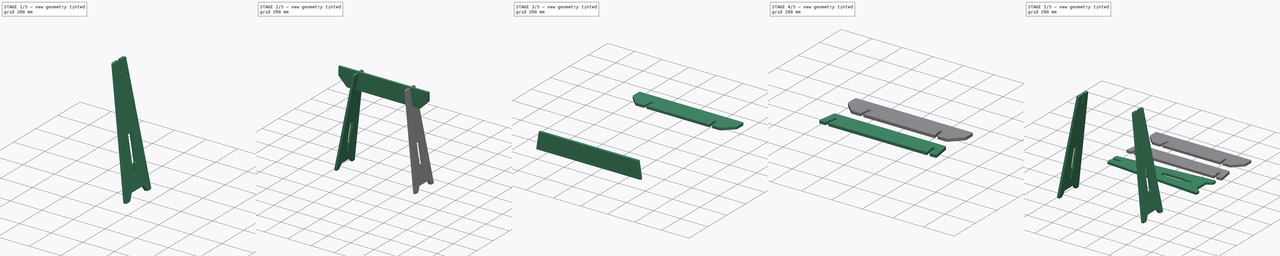
[diagram: build sequence overview — one tinted view per stage of 5, left to right]
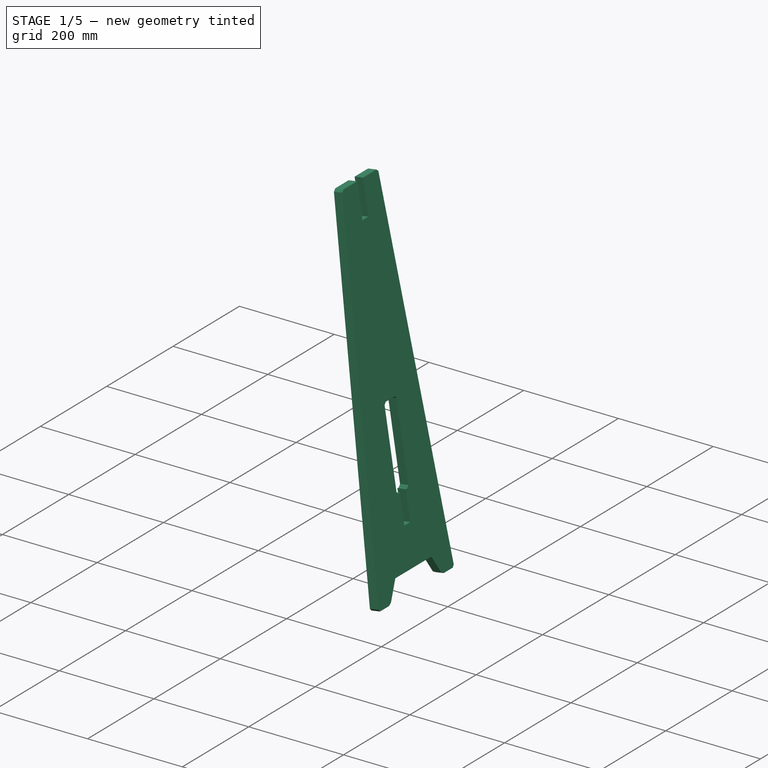
[diagram: stage 1 of 5 — iso view after this stage's code; geometry added in this stage tinted green]
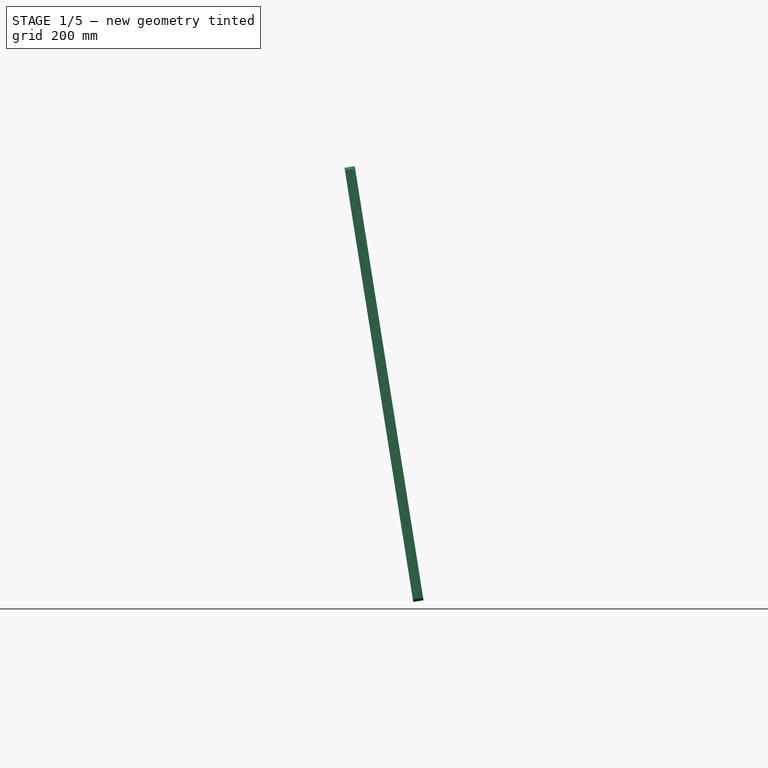
[diagram: stage 1 of 5 — front view after this stage's code; geometry added in this stage tinted green]
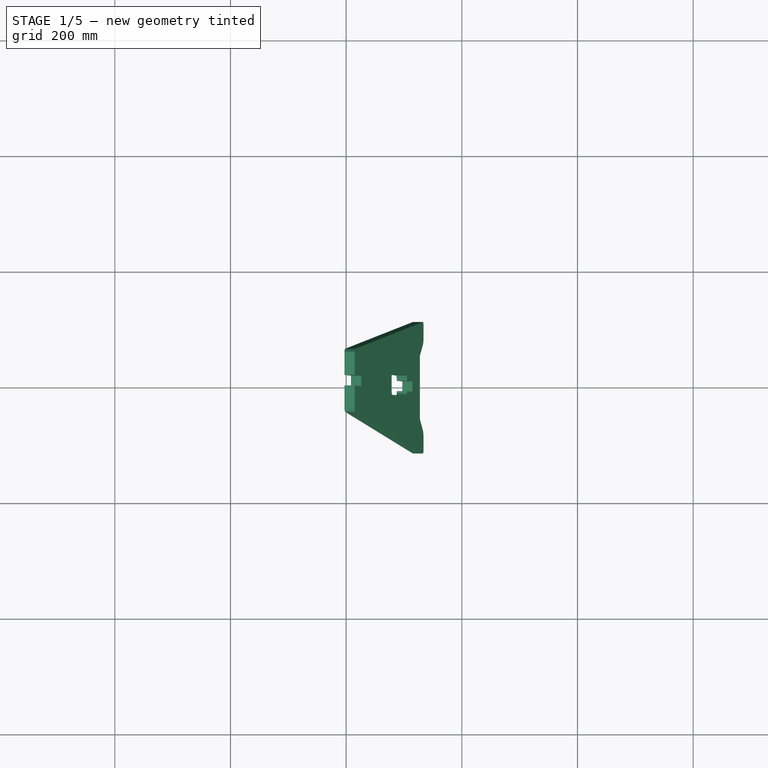
[diagram: stage 1 of 5 — top view after this stage's code; geometry added in this stage tinted green]
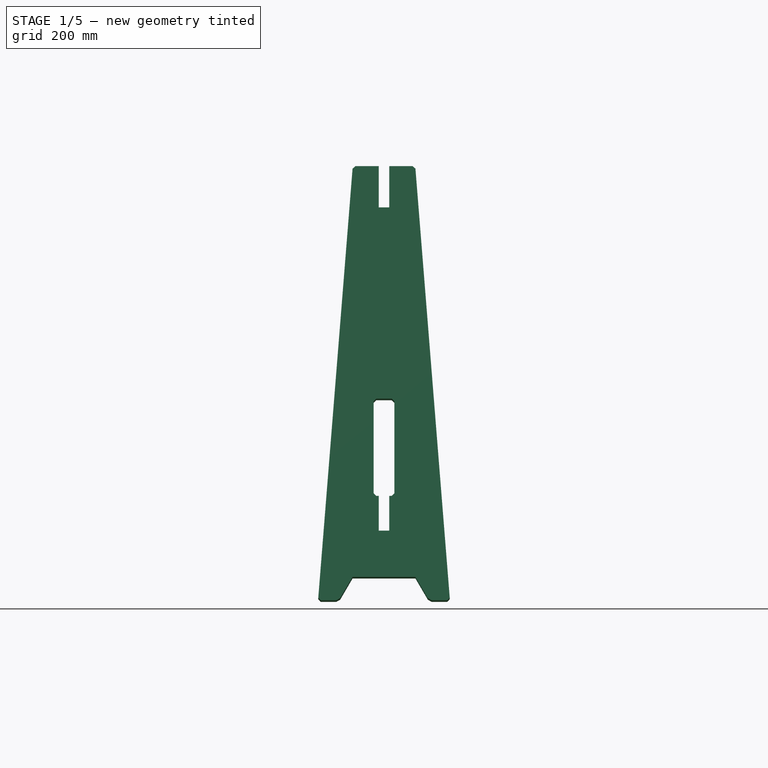
[diagram: stage 1 of 5 — right view after this stage's code; geometry added in this stage tinted green]
FCSTD DOCUMENT  (FreeCAD 0.18R4 (GitTag))
Label: parametric-sawhorse
License: CreativeCommons Attribution-ShareAlike
LicenseURL: http://creativecommons.org/licenses/by-sa/4.0/
objects: Part::FeaturePython×7, PartDesign::Chamfer×4, Sketcher::SketchObject×3, PartDesign::Pad×3, PartDesign::Body×3, Part::Cut×2, Spreadsheet::Sheet×1, Part::Mirroring×1, Part::Compound×1
note: 27 computed .brp shape members not serialized (recipe doc carries the construction recipe); baked Part::Feature solids carry a one-line shape summary decoded from their .brp

FEATURE [Sketcher::SketchObject] Sketch002
  MapMode = 5
  Placement = pos=(0,0,0) rot=(0.57735,0.57735,0.57735;2.0944rad)
  Support = -> [YZ_Plane002]
  expr: Constraints[39] = Spreadsheet.material_thickness
  expr: Constraints[64] = Spreadsheet.ground_clearance - Spreadsheet.material_thickness * 0.5
  expr: Constraints[32] = Spreadsheet.material_thickness * 3
  expr: Constraints[60] = Spreadsheet.top_bar_heigth * 0.5
  expr: Constraints[55] = Spreadsheet.heigth - Spreadsheet.top_bar_heigth * 0.5
  expr: Constraints[51] = Spreadsheet.material_thickness * 0.5
  expr: Constraints[31] = Spreadsheet.leg_width / 2
  expr: Constraints[30] = Spreadsheet.leg_width
  expr: Constraints[47] = Spreadsheet.leg_angle
  expr: Constraints[43] = Spreadsheet.bottom_bar_heigth * 1.4
  expr: Constraints[67] = Spreadsheet.leg_width * 0.5 - Spreadsheet.material_thickness * 2
  expr: Constraints[46] = Spreadsheet.ground_clearance + Spreadsheet.bottom_bar_heigth
  expr: Constraints[42] = Spreadsheet.bottom_bar_heigth * 0.5
  expr: Constraints[33] = Spreadsheet.material_thickness * 0.5
  expr: Constraints[45] = Spreadsheet.leg_width
  expr: Constraints[40] = Spreadsheet.material_thickness * 0.5
  sketch-geometry (24):
    g0: LineSegment StartX=54 StartY=760 StartZ=0 EndX=114 EndY=0 EndZ=0
    g1: LineSegment StartX=114 StartY=0 StartZ=0 EndX=78 EndY=0 EndZ=0
    g2: LineSegment StartX=78 StartY=0 StartZ=0 EndX=54.3286 EndY=41 EndZ=0
    g3: LineSegment StartX=-54.3286 StartY=41 StartZ=0 EndX=-78 EndY=0 EndZ=0
    g4: LineSegment StartX=-114 StartY=0 StartZ=0 EndX=-54 EndY=760 EndZ=0
    g5: LineSegment StartX=-54.3286 StartY=41 StartZ=0 EndX=54.3286 EndY=41 EndZ=0
    g6: LineSegment StartX=-54 StartY=760 StartZ=0 EndX=-9 EndY=760 EndZ=0
    g7: LineSegment StartX=-9 StartY=760 StartZ=0 EndX=-9 EndY=687.8 EndZ=0
    g8: LineSegment StartX=-9 StartY=687.8 StartZ=0 EndX=9 EndY=687.8 EndZ=0
    g9: LineSegment StartX=9 StartY=687.8 StartZ=0 EndX=9 EndY=760 EndZ=0
    g10: LineSegment StartX=9 StartY=760 StartZ=0 EndX=54 EndY=760 EndZ=0
    g11: LineSegment StartX=-18 StartY=182.739 StartZ=0 EndX=-9 EndY=182.739 EndZ=0
    g12: LineSegment StartX=-9 StartY=182.739 StartZ=0 EndX=-9 EndY=121.939 EndZ=0
    g13: LineSegment StartX=-9 StartY=121.939 StartZ=0 EndX=9 EndY=121.939 EndZ=0
    g14: LineSegment StartX=9 StartY=121.939 StartZ=0 EndX=9 EndY=182.739 EndZ=0
    g15: LineSegment StartX=9 StartY=182.739 StartZ=0 EndX=18 EndY=182.739 EndZ=0
    g16: LineSegment StartX=18 StartY=182.739 StartZ=0 EndX=18 EndY=352.979 EndZ=0
    g17: LineSegment StartX=18 StartY=352.979 StartZ=0 EndX=-18 EndY=352.979 EndZ=0
    g18: LineSegment StartX=-18 StartY=352.979 StartZ=0 EndX=-18 EndY=182.739 EndZ=0
    g19: LineSegment [constr] StartX=-255.179 StartY=171.6 StartZ=0 EndX=-228 EndY=0 EndZ=0
    g20: LineSegment [constr] StartX=-228 StartY=173.739 StartZ=0 EndX=-228 EndY=0 EndZ=0
    g21: LineSegment [constr] StartX=-328 StartY=0 StartZ=0 EndX=-220.404 EndY=-679.332 EndZ=0
    g22: LineSegment [constr] StartX=-328 StartY=0 StartZ=0 EndX=-328 EndY=687.8 EndZ=0
    g23: LineSegment StartX=-114 StartY=0 StartZ=0 EndX=-78 EndY=0 EndZ=0
  constraints (68):
    c: PointOnObject(g0,g-1)
    c: Coincident(g0,g1)
    c: PointOnObject(g1,g-1)
    c: Coincident(g1,g2)
    c: PointOnObject(g4,g-1)
    c: Coincident(g5,g3)
    c: Coincident(g5,g2)
    c: Coincident(g4,g6)
    c: Horizontal(g6)
    c: Coincident(g6,g7)
    c: Vertical(g7)
    c: Coincident(g7,g8)
    c: Horizontal(g8)
    c: Coincident(g8,g9)
    c: Vertical(g9)
    c: Coincident(g9,g10)
    c: Coincident(g10,g0)
    c: Horizontal(g11)
    c: Coincident(g11,g12)
    c: Vertical(g12)
    c: Coincident(g12,g13)
    c: Horizontal(g13)
    c: Coincident(g13,g14)
    c: Vertical(g14)
    c: Coincident(g14,g15)
    c: Horizontal(g15)
    c: Coincident(g15,g16)
    c: Coincident(g16,g17)
    c: Coincident(g17,g18)
    c: Coincident(g18,g11)
    c: DistanceX(g4,g0) = 228
    c: DistanceX(g4,g-1) = 114
    c: DistanceX(g4,g-1) = 54
    c: DistanceX(g6,g-1) = 9
    c: Symmetric(g0,g4,g-2)
    c: Symmetric(g9,g6,g-2)
    c: Symmetric(g16,g17,g-2)
    c: Vertical(g18)
    c: Vertical(g16)
    c: DistanceX(g17,g-1) = 18
    c: DistanceX(g11,g-1) = 9
    c: Symmetric(g14,g11,g-2)
    c: Distance(g12) = 60.8
    c: Distance(g16) = 170.24
    c: DistanceY(g-1,g19) = 0
    c: DistanceX(g19,g-1) = 228
    c: DistanceY(g19,g19) = 171.6
    c: Angle(g-2,g19) = 0.15708
    c: Vertical(g20)
    c: Equal(g20,g19)
    c: Coincident(g20,g19)
    c: DistanceY(g20,g11) = 9
    c: DistanceY(g19,g21) = 0
    c: DistanceX(g21,g19) = 100
    c: Parallel(g21,g19)
    c: Distance(g21) = 687.8
    c: Vertical(g22)
    c: Equal(g22,g21)
    c: Coincident(g22,g21)
    c: DistanceY(g7,g22) = 0
    c: Distance(g7) = 72.2
    c: Angle(g3,g-2) = 0.523599
    c: Symmetric(g2,g3,g-2)
    c: Symmetric(g1,g3,g-2)
    c: DistanceY(g3,g3) = 41
    c: Coincident(g23,g4)
    c: Coincident(g23,g3)
    c: DistanceX(g3,g-1) = 78
FEATURE [PartDesign::Pad] Pad002
  Length = 18
  Length2 = 100
  Placement = pos=(0,0,0) rot=(0.57735,0.57735,0.57735;2.0944rad)
  Profile = -> Sketch002
  Reversed = true
  Type = 0
  expr: Length = Spreadsheet.material_thickness
FEATURE [PartDesign::Body] Body001  label="Bottom bar body"
  Group = -> [Sketch001,Pad001,Chamfer002]
  Origin = -> Origin001
  Tip = -> Chamfer002
FEATURE [PartDesign::Chamfer] Chamfer003
  Base = -> Pad002 [Edge17,Edge2,Edge1,Edge20,Edge23,Edge32,Edge53,Edge56,Edge50,Edge37]
  BaseFeature = -> Pad002
  Placement = pos=(0,0,0) rot=(0.57735,0.57735,0.57735;2.0944rad)
  Size = 4.5
  expr: Size = Spreadsheet.chamfer_size
FEATURE [PartDesign::Body] Body002  label="Leg body"
  Group = -> [Sketch002,Pad002,Chamfer003]
  Origin = -> Origin002
  Tip = -> Chamfer003
FEATURE [Part::FeaturePython] Array  # Draft array (typed FeaturePython)
  Angle = 360
  ArrayType = 0
  Axis = (0,0,1)
  Base = -> Chamfer003
  Center = (0,0,0)
  Fuse = false
  IntervalAxis = (0,0,0)
  IntervalX = (1,0,0)
  IntervalY = (0,1,0)
  IntervalZ = (0,0,1)
  NumberPolar = 1
  NumberX = 1
  NumberY = 1
  NumberZ = 1
  Placement = pos=(54,0,0) rot=(0,1,0;0.15708rad)
  expr: Placement.Base.x = Spreadsheet.material_thickness * 3
  expr: Placement.Rotation.Angle = Spreadsheet.leg_angle
FEATURE [Part::Mirroring] Part__Mirroring  label="Array (Mirror #1)"
  Base = (385,0,0)
  Normal = (1,0,0)
  Source = -> Array
  expr: Base.x = Spreadsheet.width * 0.5
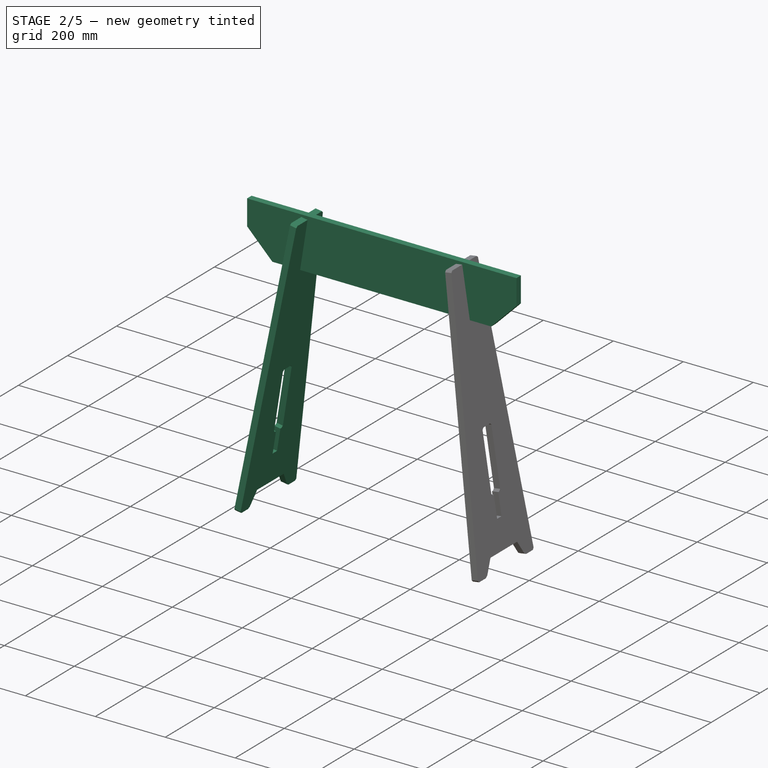
[diagram: stage 2 of 5 — iso view after this stage's code; geometry added in this stage tinted green]
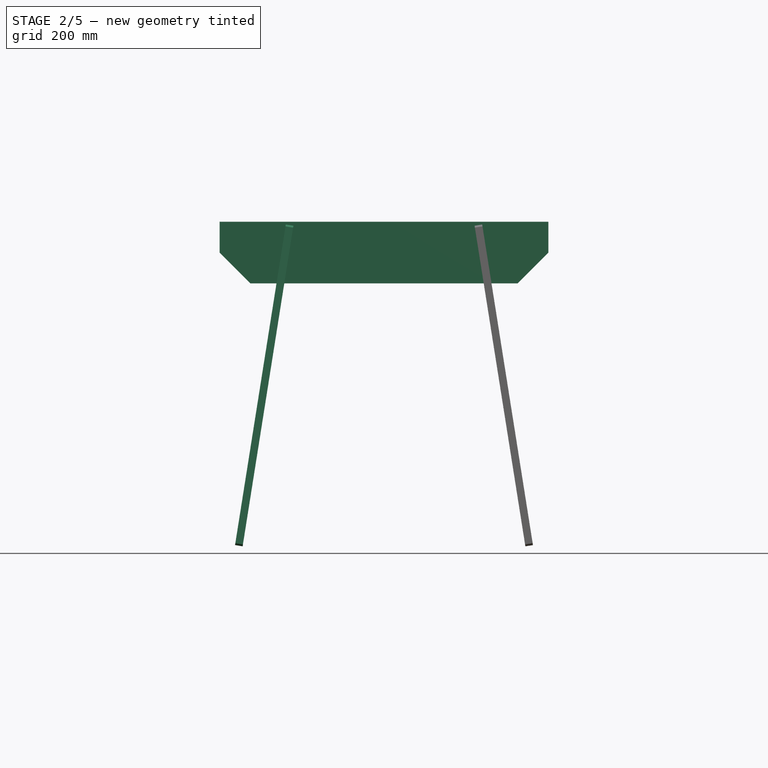
[diagram: stage 2 of 5 — front view after this stage's code; geometry added in this stage tinted green]
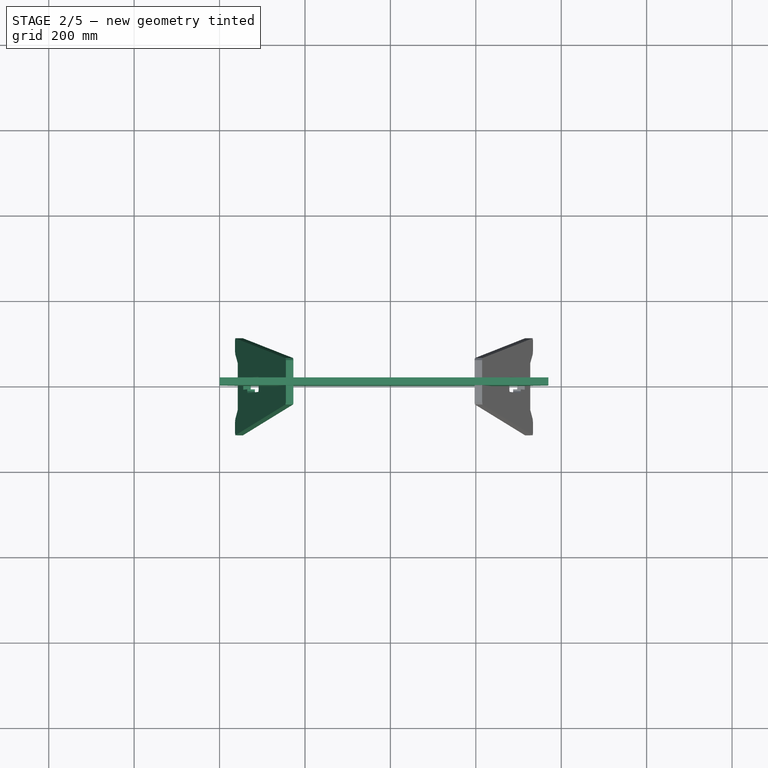
[diagram: stage 2 of 5 — top view after this stage's code; geometry added in this stage tinted green]
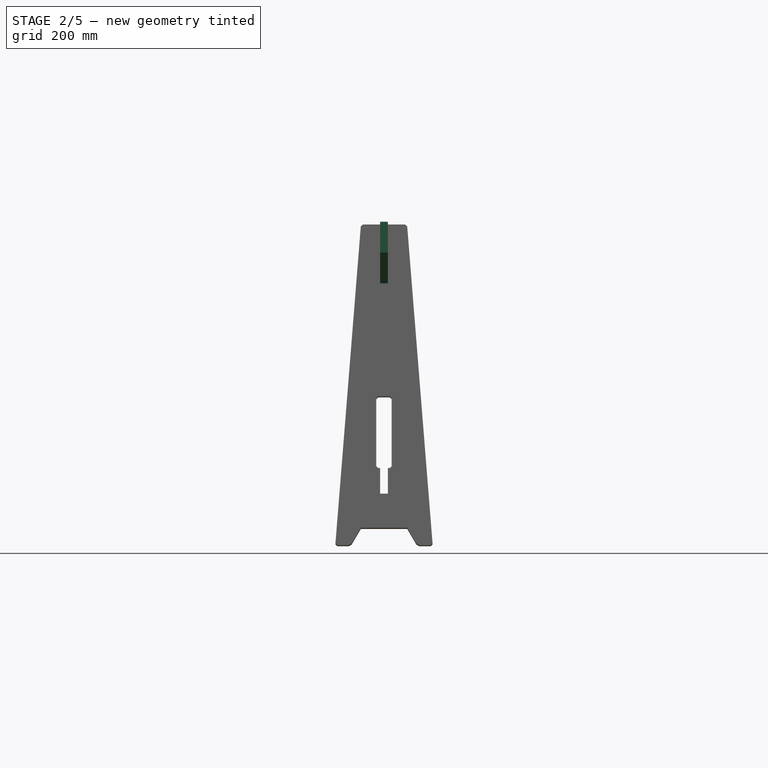
[diagram: stage 2 of 5 — right view after this stage's code; geometry added in this stage tinted green]
FEATURE [Spreadsheet::Sheet] Spreadsheet
  cells = A2=Main settings:; A3=Horse heigth; B3(heigth)=760; A4=Horse width; B4(width)=770; A5=Material thickness; B5(material_thickness)=18; A7=Advanced settings:; A8=Leg angle; B8(leg_angle)=9; A9=Leg width factor; B9=0.3; A10=Top bar heigth factor; B10=0.19; A11=Bottom bar heigth factor; B11=0.16; A12=Chamfer factor; B12=0.25; A13=Ground clearance; B13(ground_clearance)=50; A17=Computed values (not to be changed):; A18=Leg width; B18(leg_width)==heigth * B9; A19=Top bar heigth; B19(top_bar_heigth)==heigth * B10; A20=Bottom bar heigth; B20(bottom_bar_heigth)==heigth * B11; A21=Chamfer size; B21(chamfer_size)==material_thickness * B12
FEATURE [Sketcher::SketchObject] Sketch
  MapMode = 5
  Placement = pos=(0,0,0) rot=(1,0,0;1.5708rad)
  Support = -> [XZ_Plane]
  expr: Constraints[11] = Spreadsheet.heigth
  expr: Constraints[9] = Spreadsheet.top_bar_heigth
  expr: Constraints[8] = Spreadsheet.width
  sketch-geometry (4):
    g0: LineSegment StartX=0 StartY=760 StartZ=0 EndX=770 EndY=760 EndZ=0
    g1: LineSegment StartX=770 StartY=760 StartZ=0 EndX=770 EndY=615.6 EndZ=0
    g2: LineSegment StartX=770 StartY=615.6 StartZ=0 EndX=0 EndY=615.6 EndZ=0
    g3: LineSegment StartX=0 StartY=615.6 StartZ=0 EndX=0 EndY=760 EndZ=0
  constraints (12):
    c: Coincident(g0,g1)
    c: Coincident(g1,g2)
    c: Coincident(g2,g3)
    c: Coincident(g3,g0)
    c: Horizontal(g0)
    c: Horizontal(g2)
    c: Vertical(g1)
    c: Vertical(g3)
    c: DistanceX(g2,g2) = 770
    c: DistanceY(g1,g1) = 144.4
    c: DistanceX(g0,g-1) = 0
    c: DistanceY(g-1,g0) = 760
FEATURE [PartDesign::Pad] Pad
  Length = 18
  Length2 = 100
  Midplane = true
  Placement = pos=(0,0,0) rot=(1,0,0;1.5708rad)
  Profile = -> Sketch
  Type = 0
  expr: Length = Spreadsheet.material_thickness
FEATURE [PartDesign::Chamfer] Chamfer
  Base = -> Pad [Edge5,Edge8]
  BaseFeature = -> Pad
  Placement = pos=(0,0,0) rot=(1,0,0;1.5708rad)
  Size = 72.2
  expr: Size = Spreadsheet.top_bar_heigth * 0.5
FEATURE [Part::Compound] Compound  label="Legs for boolean"
  Links = -> [Array,Part__Mirroring]
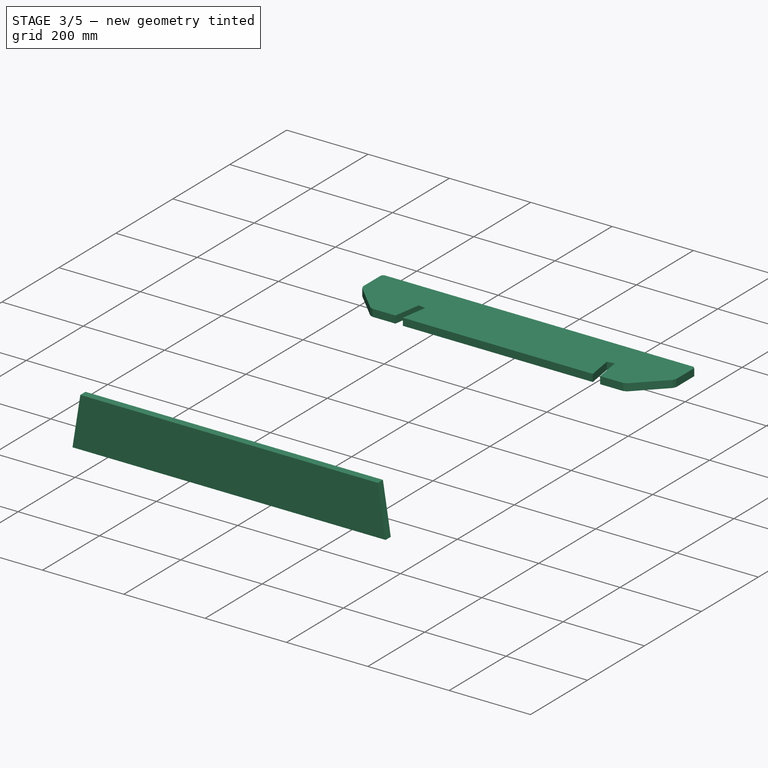
[diagram: stage 3 of 5 — iso view after this stage's code; geometry added in this stage tinted green]
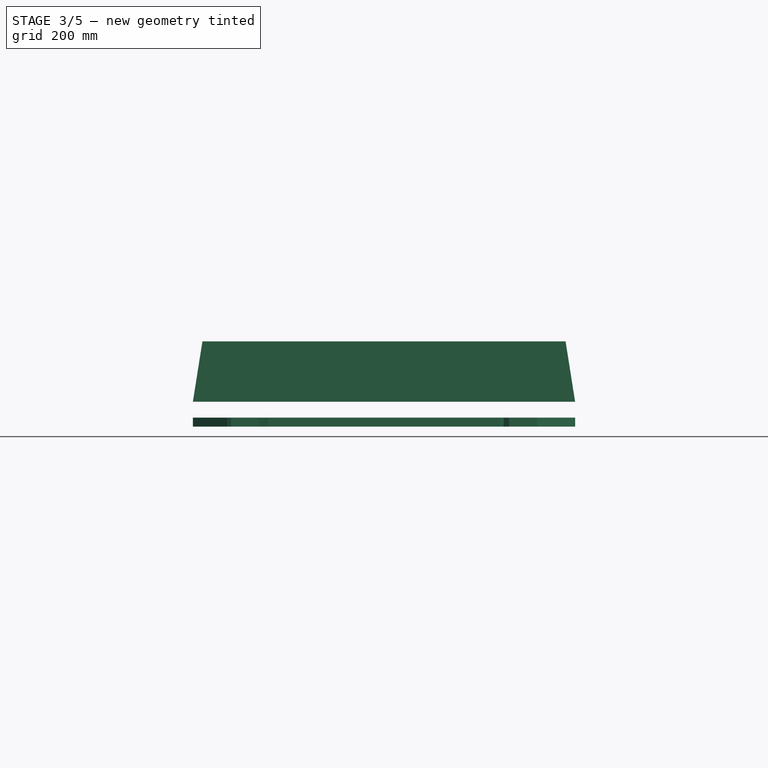
[diagram: stage 3 of 5 — front view after this stage's code; geometry added in this stage tinted green]
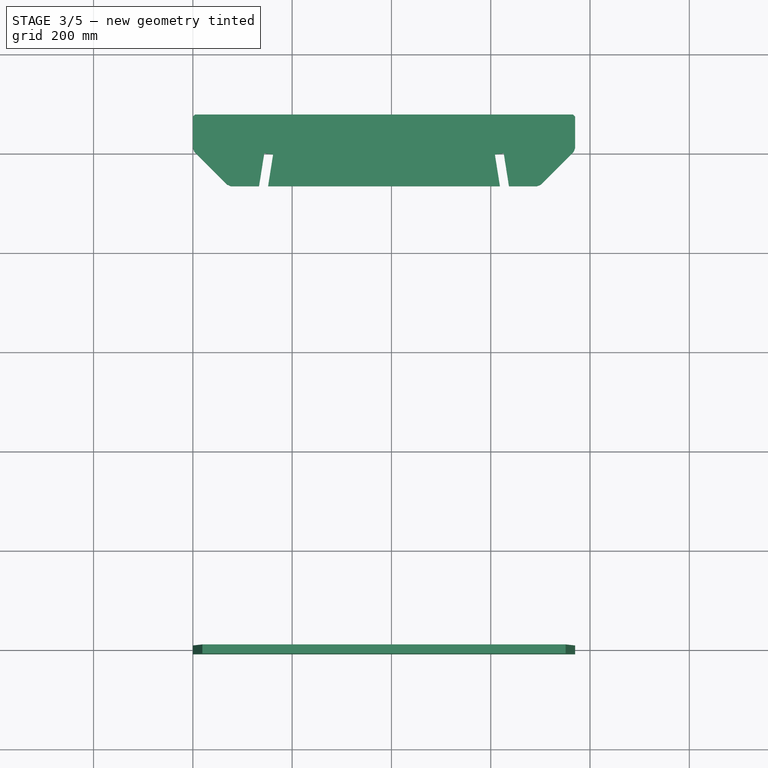
[diagram: stage 3 of 5 — top view after this stage's code; geometry added in this stage tinted green]
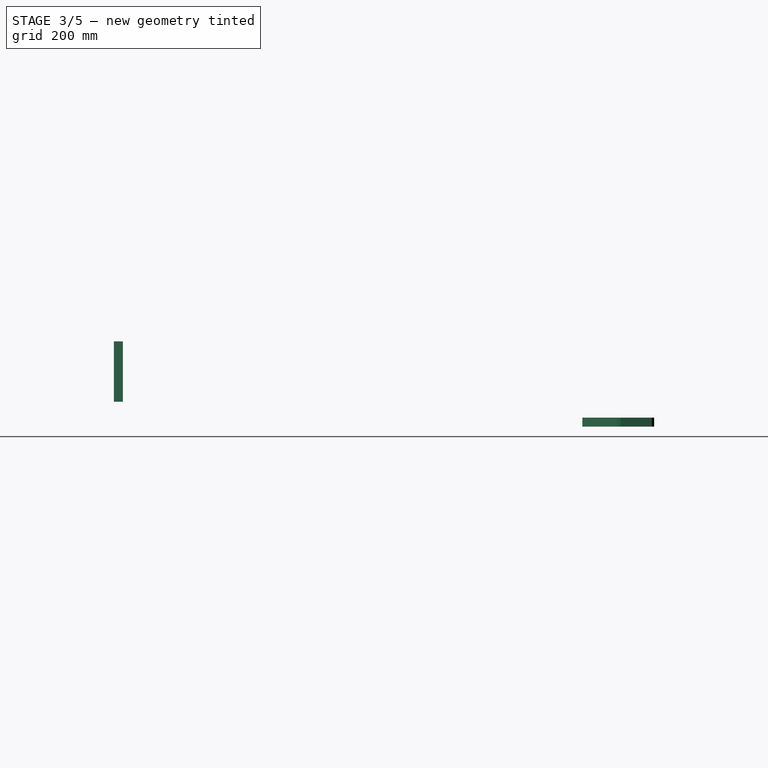
[diagram: stage 3 of 5 — right view after this stage's code; geometry added in this stage tinted green]
FEATURE [Sketcher::SketchObject] Sketch001
  MapMode = 5
  Placement = pos=(0,0,0) rot=(1,0,0;1.5708rad)
  Support = -> [XZ_Plane001]
  expr: Constraints[11] = Spreadsheet.ground_clearance
  expr: Constraints[9] = Spreadsheet.bottom_bar_heigth
  expr: Constraints[8] = Spreadsheet.width
  expr: Constraints[7] = Spreadsheet.leg_angle
  expr: Constraints[6] = Spreadsheet.leg_angle
  sketch-geometry (4):
    g0: LineSegment StartX=0 StartY=50 StartZ=0 EndX=770 EndY=50 EndZ=0
    g1: LineSegment StartX=770 StartY=50 StartZ=0 EndX=750.74 EndY=171.6 EndZ=0
    g2: LineSegment StartX=750.74 StartY=171.6 StartZ=0 EndX=19.2595 EndY=171.6 EndZ=0
    g3: LineSegment StartX=19.2595 StartY=171.6 StartZ=0 EndX=0 EndY=50 EndZ=0
  constraints (12):
    c: Coincident(g0,g1)
    c: Coincident(g1,g2)
    c: Coincident(g2,g3)
    c: Coincident(g3,g0)
    c: Horizontal(g0)
    c: Horizontal(g2)
    c: Angle(g3,g-2) = 0.15708
    c: Angle(g-2,g1) = 0.15708
    c: DistanceX(g0,g0) = 770
    c: DistanceY(g0,g2) = 121.6
    c: DistanceX(g0,g-1) = 0
    c: DistanceY(g-1,g0) = 50
FEATURE [PartDesign::Pad] Pad001
  Length = 18
  Length2 = 100
  Midplane = true
  Placement = pos=(0,0,0) rot=(1,0,0;1.5708rad)
  Profile = -> Sketch001
  Type = 0
  expr: Length = Spreadsheet.material_thickness
FEATURE [PartDesign::Chamfer] Chamfer001
  Base = -> Chamfer [Edge18,Edge12,Edge17,Edge10,Edge2,Edge3]
  BaseFeature = -> Chamfer
  Placement = pos=(0,0,0) rot=(1,0,0;1.5708rad)
  Size = 4.5
  expr: Size = Spreadsheet.chamfer_size
FEATURE [Part::Cut] Cut001  label="Top bar cut"
  Base = -> Chamfer001
  Refine = true
  Tool = -> Compound
FEATURE [Part::FeaturePython] Clone002  label="Nested top bar"  # Draft clone (typed FeaturePython)
  AttacherType = Attacher::AttachEngine3D
  Fuse = false
  Objects = -> [Cut001]
  Placement = pos=(0,319.2,9) rot=(-1,0,0;1.5708rad)
  Scale = (1,1,1)
  expr: Placement.Base.z = Spreadsheet.material_thickness * 0.5
  expr: Placement.Base.y = Spreadsheet.heigth - Spreadsheet.leg_width * 3 + Spreadsheet.bottom_bar_heigth * 2
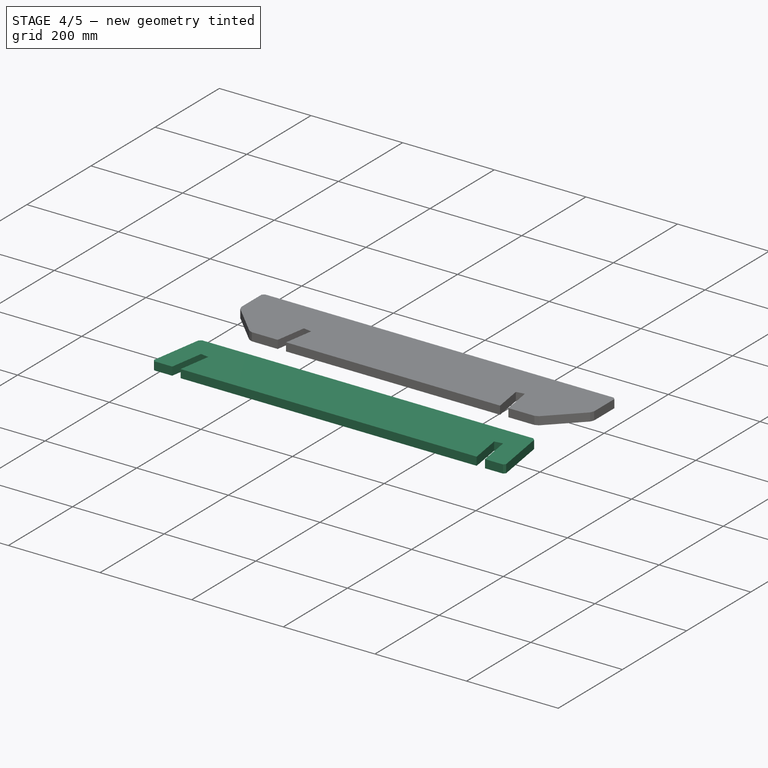
[diagram: stage 4 of 5 — iso view after this stage's code; geometry added in this stage tinted green]
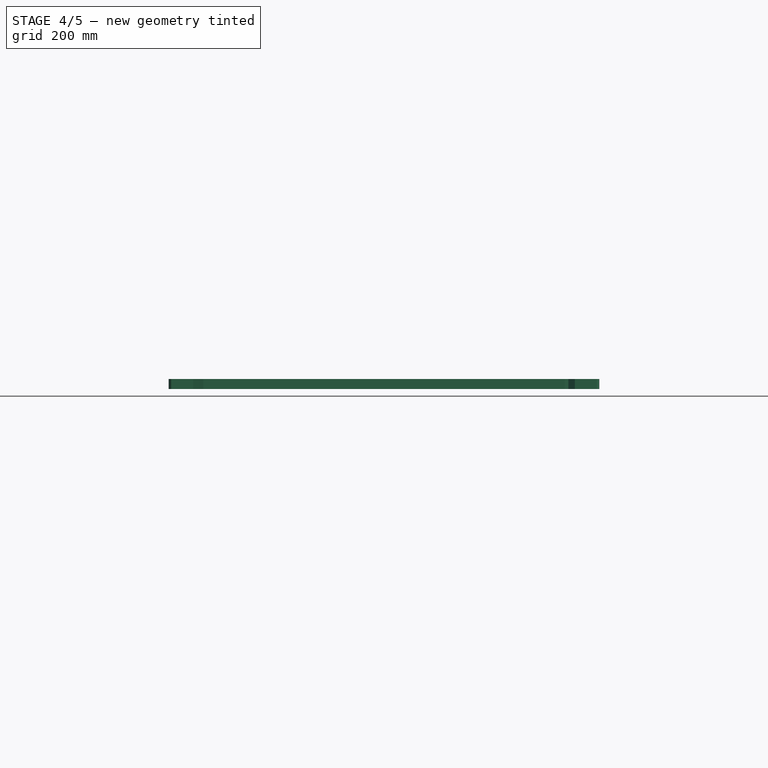
[diagram: stage 4 of 5 — front view after this stage's code; geometry added in this stage tinted green]
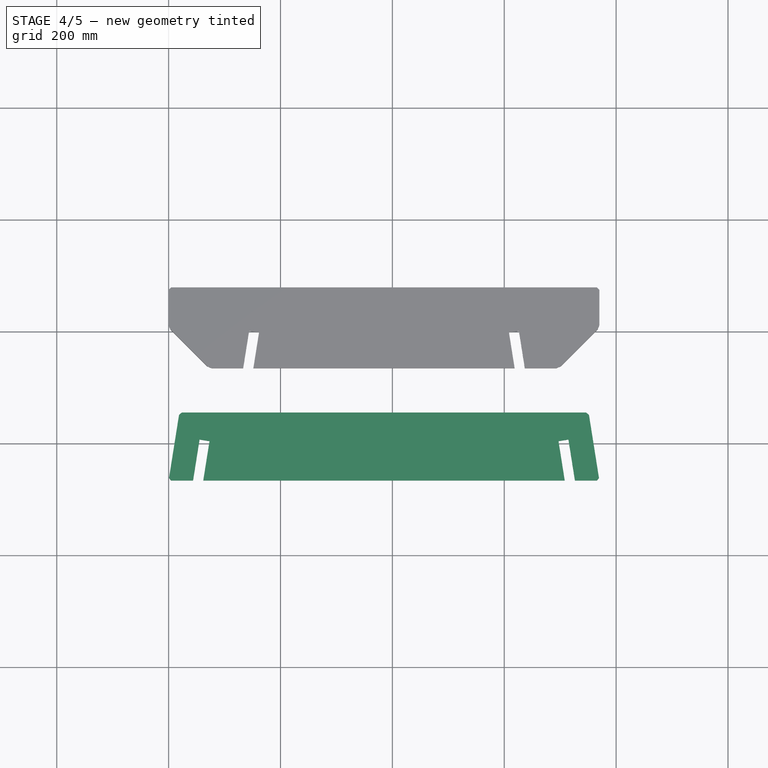
[diagram: stage 4 of 5 — top view after this stage's code; geometry added in this stage tinted green]
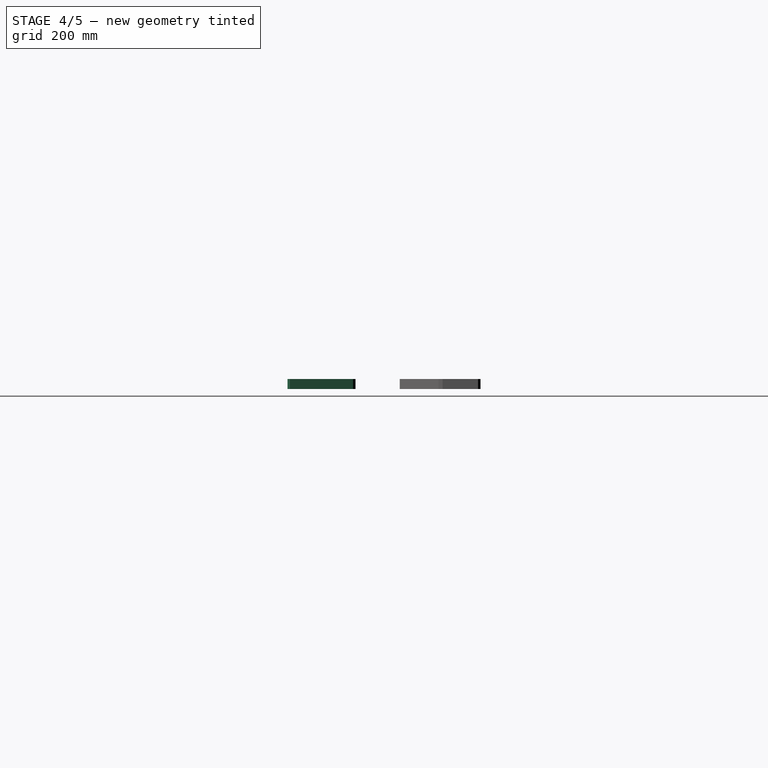
[diagram: stage 4 of 5 — right view after this stage's code; geometry added in this stage tinted green]
FEATURE [PartDesign::Body] Body  label="Top bar body"
  Group = -> [Sketch,Pad,Chamfer,Chamfer001]
  Origin = -> Origin
  Tip = -> Chamfer001
FEATURE [PartDesign::Chamfer] Chamfer002
  Base = -> Pad001 [Edge1,Edge8,Edge5,Edge2]
  BaseFeature = -> Pad001
  Placement = pos=(0,0,0) rot=(1,0,0;1.5708rad)
  Size = 4.5
  expr: Size = Spreadsheet.chamfer_size
FEATURE [Part::Cut] Cut  label="Bottom bar cut"
  Base = -> Chamfer002
  Refine = true
  Tool = -> Compound
FEATURE [Part::FeaturePython] Clone  label="Nested bottom bar"  # Draft clone (typed FeaturePython)
  AttacherType = Attacher::AttachEngine3D
  Fuse = false
  Objects = -> [Cut]
  Placement = pos=(0,684,9) rot=(-1,0,0;1.5708rad)
  Scale = (1,1,1)
  expr: Placement.Base.y = Spreadsheet.leg_width * 3
  expr: Placement.Base.z = Spreadsheet.material_thickness * 0.5
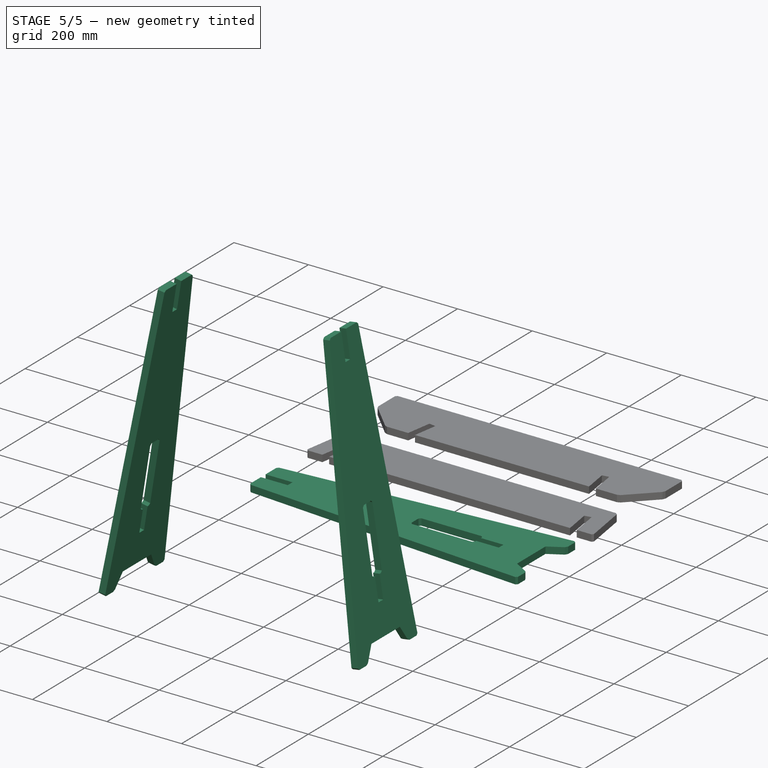
[diagram: stage 5 of 5 — iso view after this stage's code; geometry added in this stage tinted green]
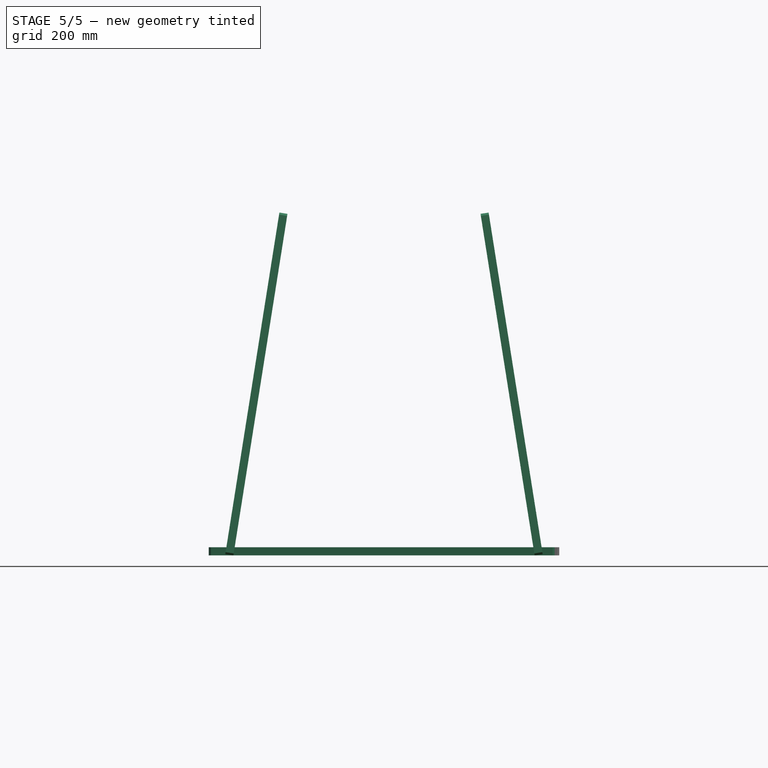
[diagram: stage 5 of 5 — front view after this stage's code; geometry added in this stage tinted green]
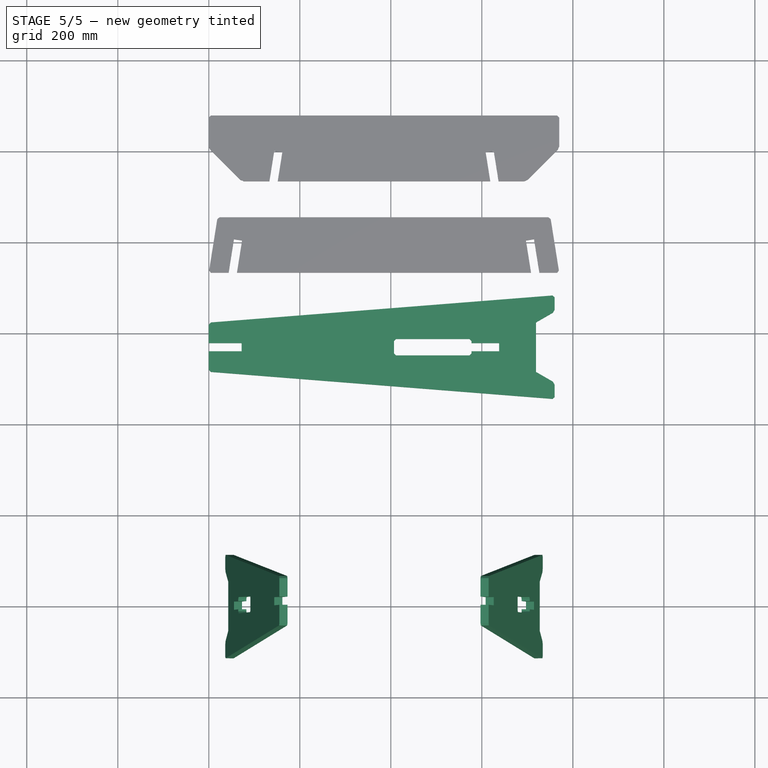
[diagram: stage 5 of 5 — top view after this stage's code; geometry added in this stage tinted green]
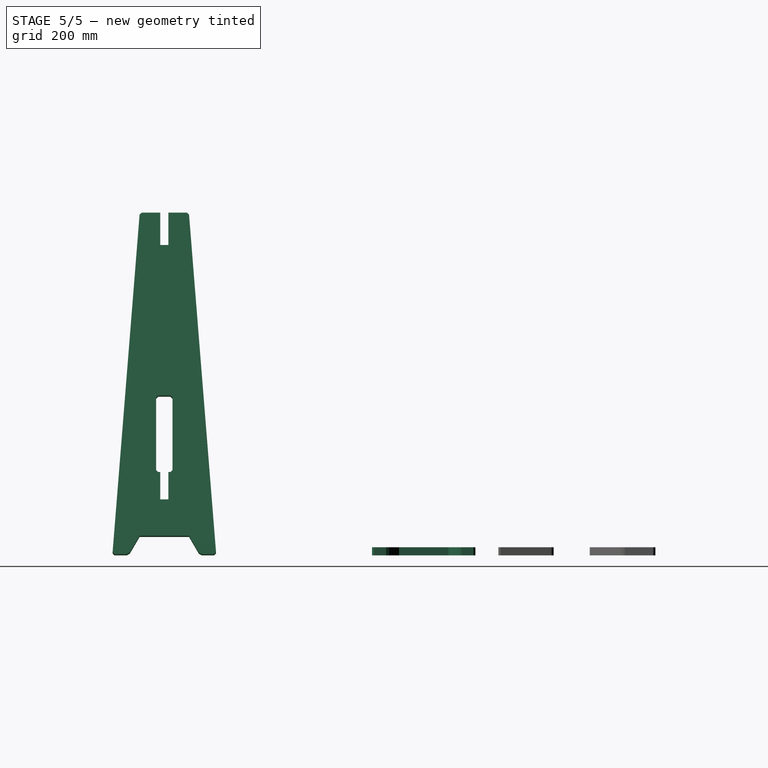
[diagram: stage 5 of 5 — right view after this stage's code; geometry added in this stage tinted green]
FEATURE [Part::FeaturePython] Clone001  label="Rigth leg"  # Draft clone (typed FeaturePython)
  AttacherType = Attacher::AttachEngine3D
  Fuse = false
  Objects = -> [Part__Mirroring]
  Scale = (1,1,1)
FEATURE [Part::FeaturePython] Array001  label="Left leg"  # Draft array (typed FeaturePython)
  Angle = 360
  ArrayType = 0
  Axis = (0,0,1)
  Base = -> Array
  Center = (0,0,0)
  Fuse = false
  IntervalAxis = (0,0,0)
  IntervalX = (1,0,0)
  IntervalY = (0,1,0)
  IntervalZ = (0,0,1)
  NumberPolar = 1
  NumberX = 1
  NumberY = 1
  NumberZ = 1
FEATURE [Part::FeaturePython] Array002  label="Nested leg1"  # Draft array (typed FeaturePython)
  Angle = 360
  ArrayType = 0
  Axis = (0,0,1)
  Base = -> Chamfer003
  Center = (0,0,0)
  Fuse = false
  IntervalAxis = (0,0,0)
  IntervalX = (1,0,0)
  IntervalY = (0,1,0)
  IntervalZ = (0,0,1)
  NumberPolar = 1
  NumberX = 1
  NumberY = 1
  NumberZ = 1
  Placement = pos=(0,342,0) rot=(0,1,0;1.5708rad)
  expr: Placement.Base.y = Spreadsheet.leg_width * 1.5
FEATURE [Part::FeaturePython] Array003  label="Nested leg2"  # Draft array (typed FeaturePython)
  Angle = 360
  ArrayType = 0
  Axis = (0,0,1)
  Base = -> Array002
  Center = (0,0,0)
  Fuse = false
  IntervalAxis = (0,0,0)
  IntervalX = (1,0,0)
  IntervalY = (0,1,0)
  IntervalZ = (0,0,1)
  NumberPolar = 1
  NumberX = 1
  NumberY = 1
  NumberZ = 1
  Placement = pos=(760,912,0) rot=(0,0,1;3.14159rad)
  expr: Placement.Base.y = Spreadsheet.leg_width * 4
  expr: Placement.Base.x = Spreadsheet.heigth
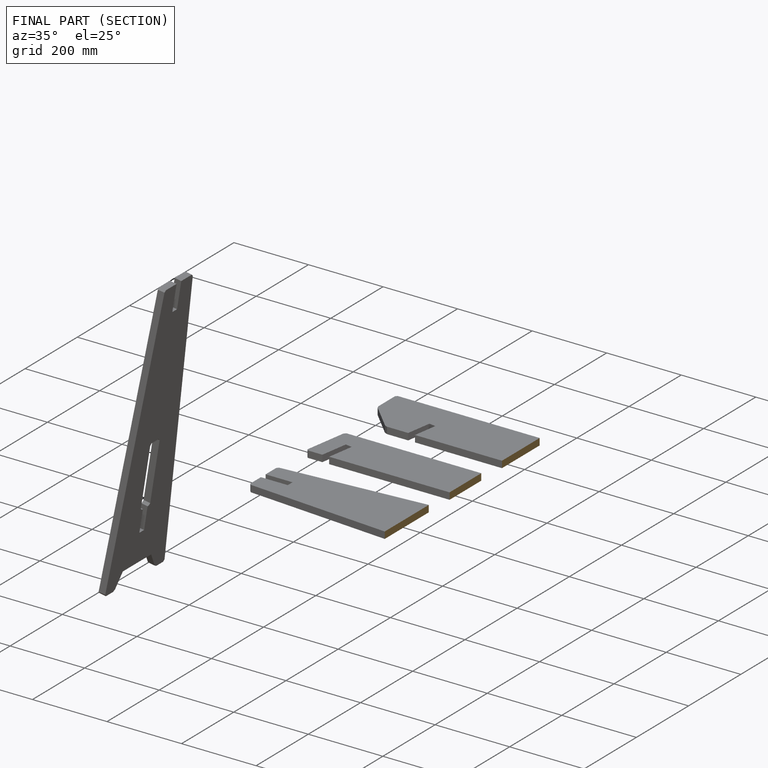
[diagram: finished part — half-section view (interior)]
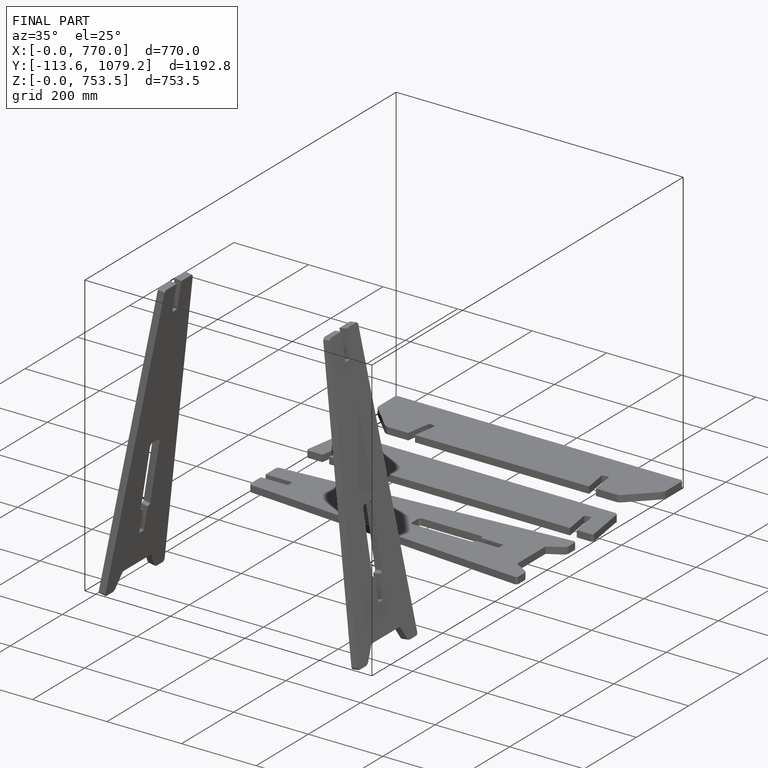
[diagram: finished part — iso view with bounding-box wireframe]
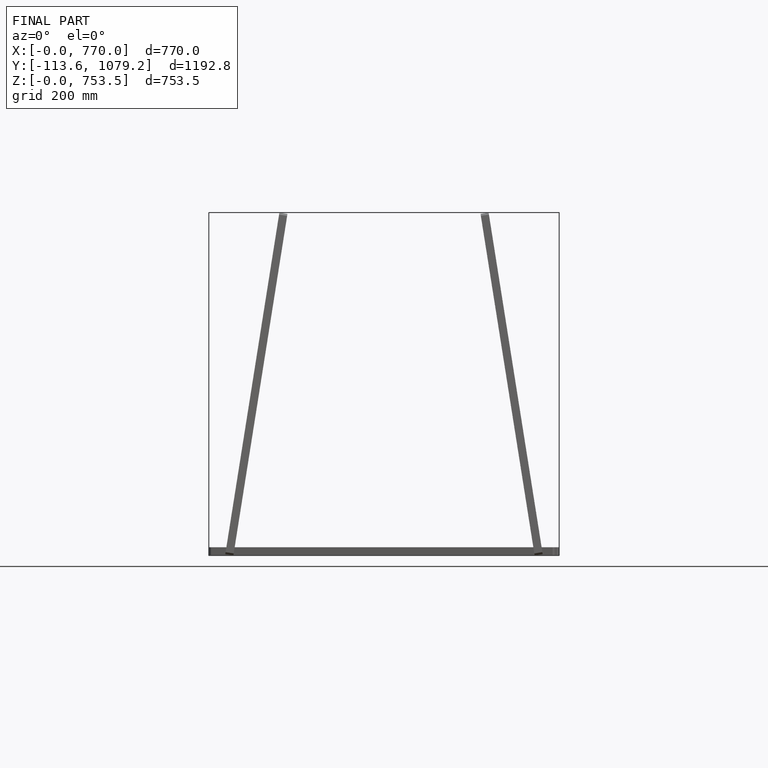
[diagram: finished part — front view with bounding-box wireframe]
